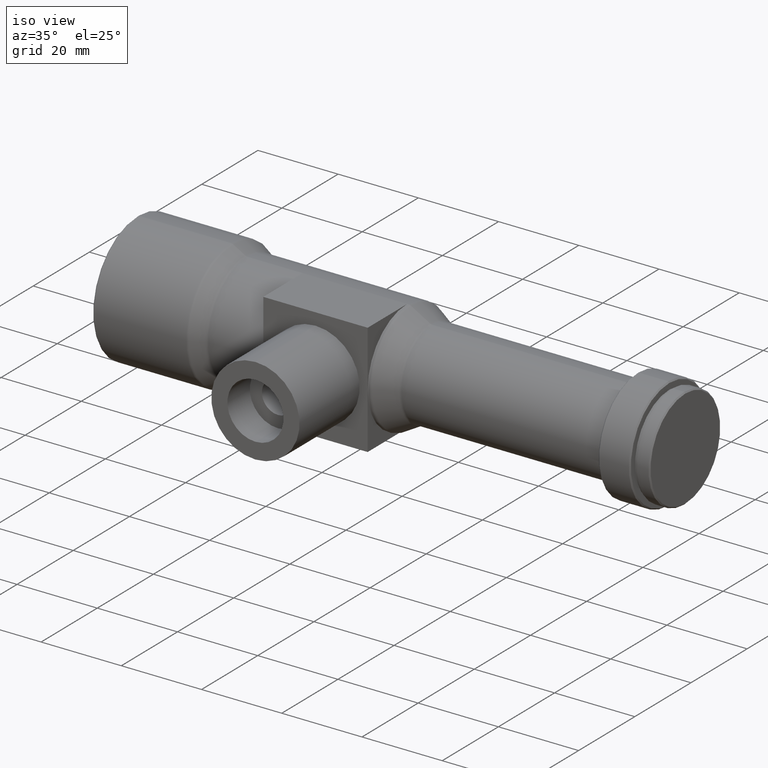
[diagram: clean part render]
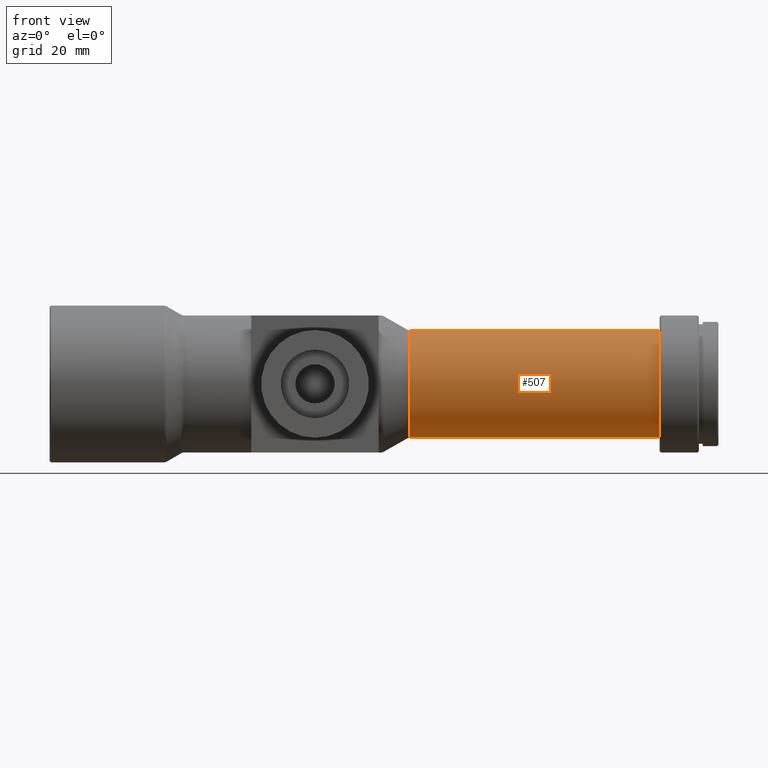
[diagram: tour spotlight — one face highlighted and labeled with its STEP entity id]
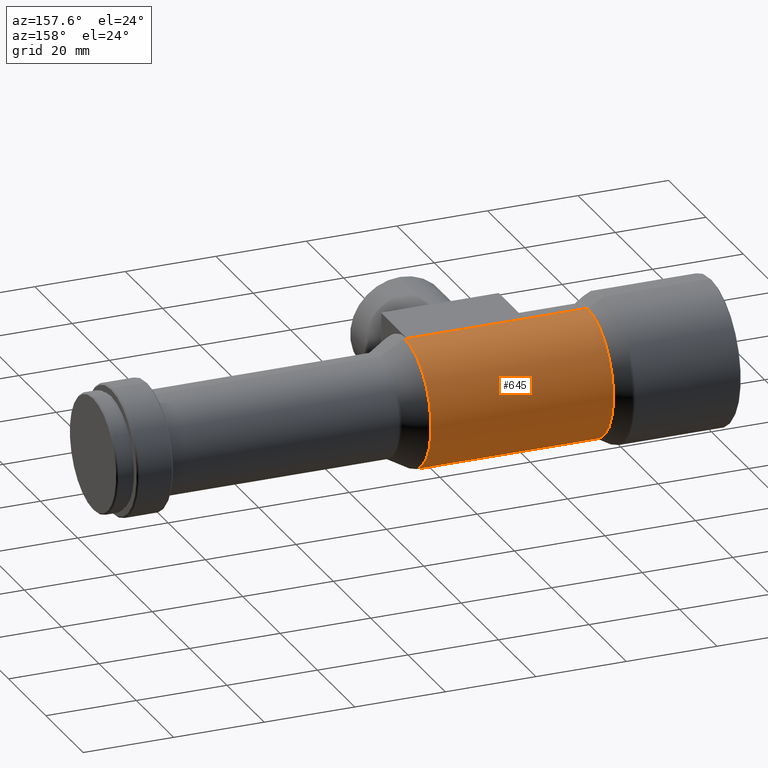
[diagram: tour spotlight — one face highlighted and labeled with its STEP entity id]
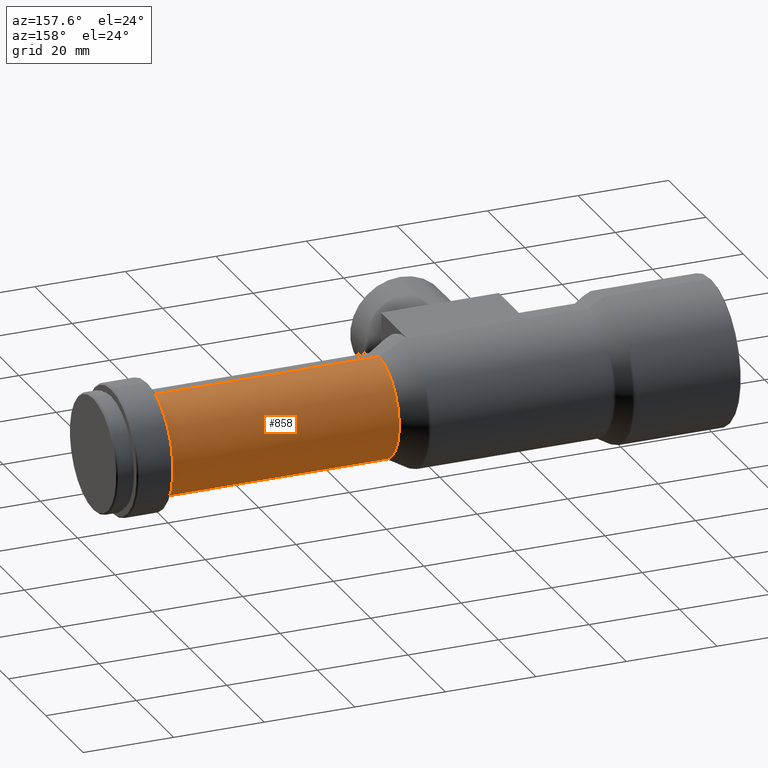
[diagram: tour spotlight — one face highlighted and labeled with its STEP entity id]
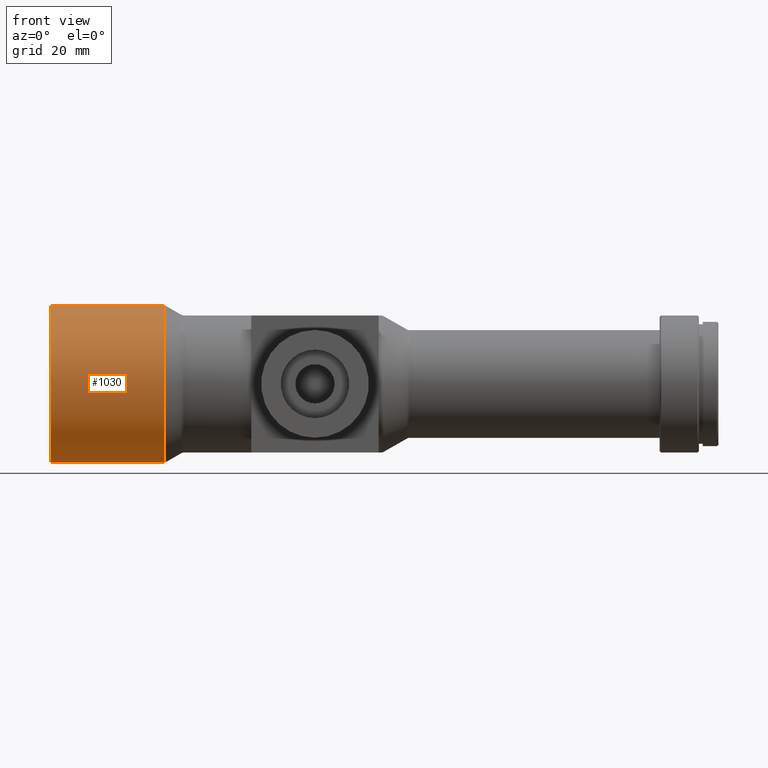
[diagram: tour spotlight — one face highlighted and labeled with its STEP entity id]
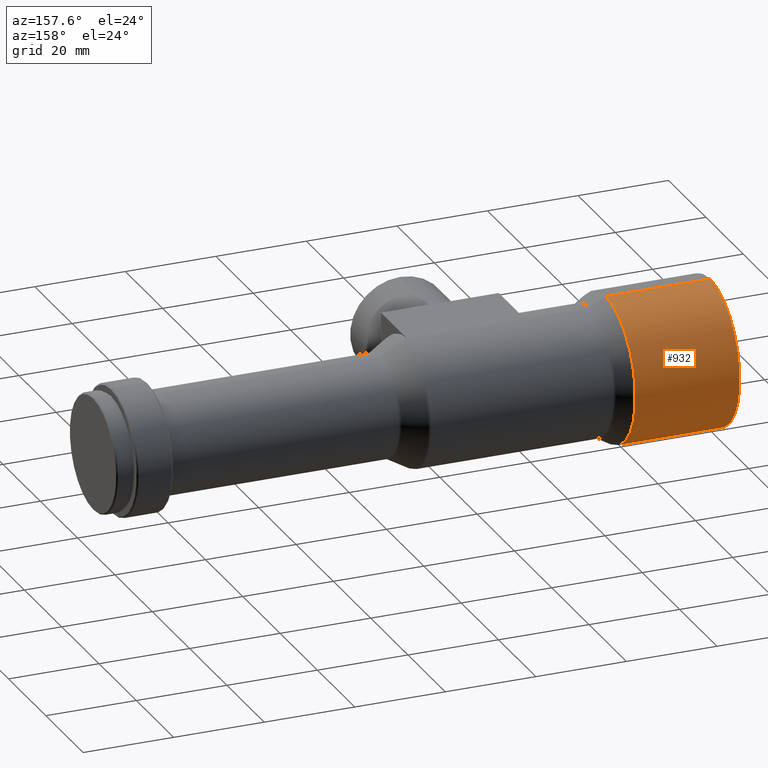
[diagram: tour spotlight — one face highlighted and labeled with its STEP entity id]
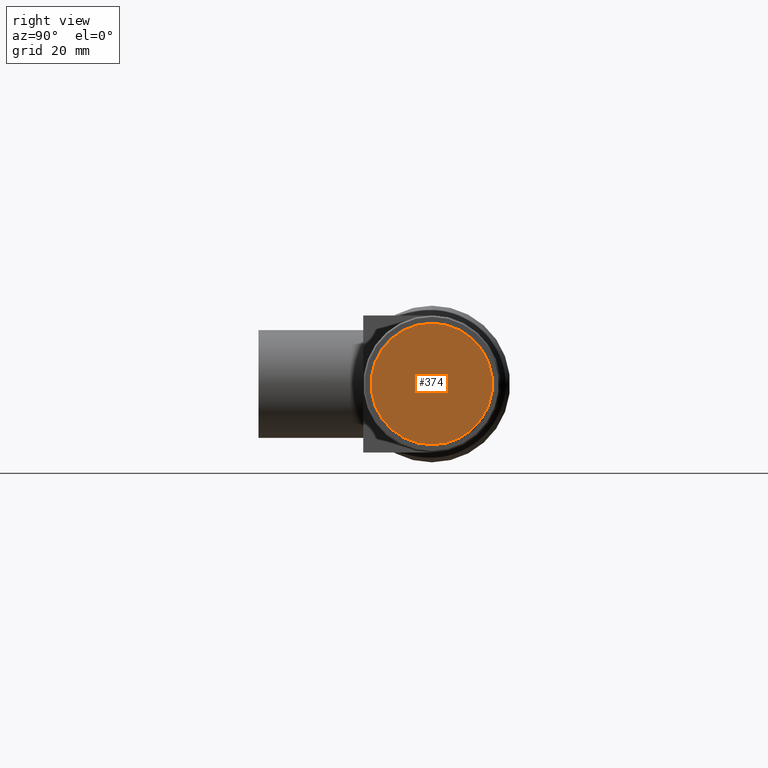
[diagram: tour spotlight — one face highlighted and labeled with its STEP entity id]
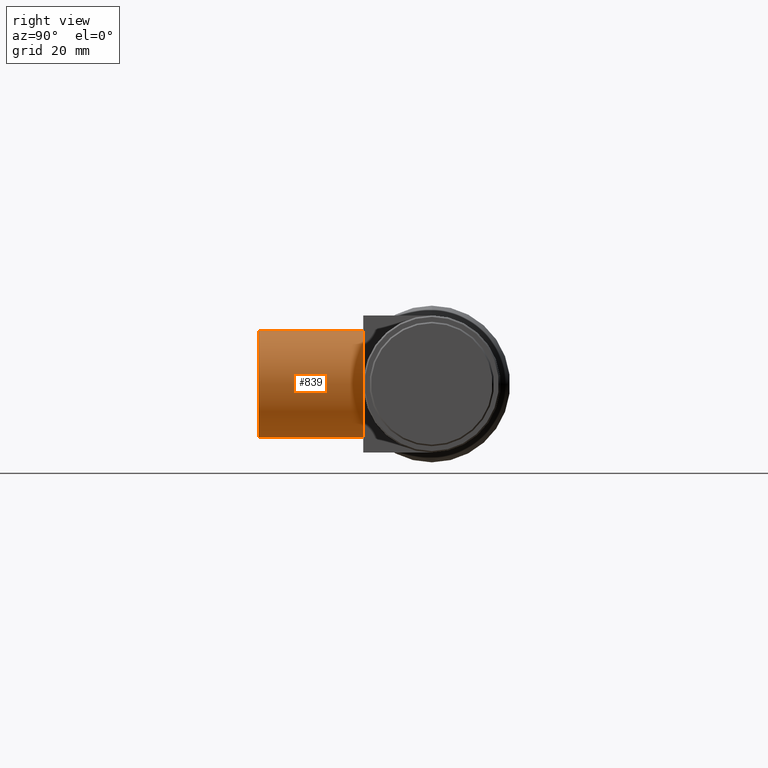
[diagram: tour spotlight — one face highlighted and labeled with its STEP entity id]
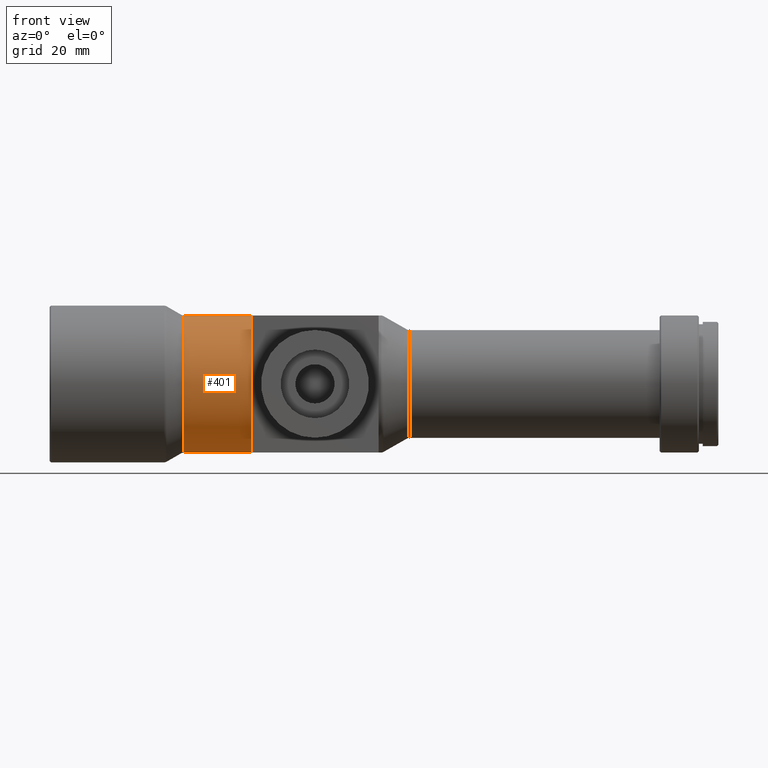
[diagram: tour spotlight — one face highlighted and labeled with its STEP entity id]
A machine part: a face-by-face anatomy tour. The part has 54 B-rep faces; the first image is the clean iso view, then the 8 largest visible faces are spotlighted one at a time (largest first), each with its STEP entity span.

Face 1 — front view, entity #507. In plain terms, the highlighted cylindrical surface (partial cylindrical patch) has radius 11 mm, axis along (-1, -0, -0).
Definition (entity closure, byte-faithful):
#8 = LINE ( 'NONE', #28, #669 ) ;
#28 = CARTESIAN_POINT ( 'NONE',  ( 0.0000000000000000000, 1.347111479062088400E-015, -11.00000000000000000 ) ) ;
#69 = DIRECTION ( 'NONE',  ( -1.000000000000000000, -0.0000000000000000000, -0.0000000000000000000 ) ) ;
#78 = VERTEX_POINT ( 'NONE', #1231 ) ;
#151 = EDGE_CURVE ( 'NONE', #1321, #1060, #354, .T. ) ;
#276 = LINE ( 'NONE', #946, #641 ) ;
#313 = VERTEX_POINT ( 'NONE', #1026 ) ;
#354 = CIRCLE ( 'NONE', #1134, 11.00000000000000000 ) ;
#384 = EDGE_CURVE ( 'NONE', #1060, #78, #276, .T. ) ;
#403 = CARTESIAN_POINT ( 'NONE',  ( 0.0000000000000000000, 0.0000000000000000000, 0.0000000000000000000 ) ) ;
#505 = DIRECTION ( 'NONE',  ( -1.000000000000000000, -0.0000000000000000000, -0.0000000000000000000 ) ) ;
#507 = ADVANCED_FACE ( 'NONE', ( #534 ), #1379, .T. ) ;
#526 = DIRECTION ( 'NONE',  ( 0.0000000000000000000, 0.0000000000000000000, 1.000000000000000000 ) ) ;
#534 = FACE_OUTER_BOUND ( 'NONE', #695, .T. ) ;
#561 = ORIENTED_EDGE ( 'NONE', *, *, #628, .F. ) ;
#628 = EDGE_CURVE ( 'NONE', #313, #78, #901, .T. ) ;
#641 = VECTOR ( 'NONE', #833, 1000.000000000000000 ) ;
#669 = VECTOR ( 'NONE', #505, 1000.000000000000000 ) ;
#695 = EDGE_LOOP ( 'NONE', ( #1415, #728, #750, #561 ) ) ;
#728 = ORIENTED_EDGE ( 'NONE', *, *, #151, .T. ) ;
#750 = ORIENTED_EDGE ( 'NONE', *, *, #384, .T. ) ;
#781 = CARTESIAN_POINT ( 'NONE',  ( 124.5999999999999900, 0.0000000000000000000, 0.0000000000000000000 ) ) ;
#814 = DIRECTION ( 'NONE',  ( 0.0000000000000000000, 0.0000000000000000000, 1.000000000000000000 ) ) ;
#833 = DIRECTION ( 'NONE',  ( -1.000000000000000000, -0.0000000000000000000, -0.0000000000000000000 ) ) ;
#901 = CIRCLE ( 'NONE', #1444, 10.99999999999999800 ) ;
#946 = CARTESIAN_POINT ( 'NONE',  ( 0.0000000000000000000, 0.0000000000000000000, 11.00000000000000000 ) ) ;
#987 = AXIS2_PLACEMENT_3D ( 'NONE', #403, #69, #526 ) ;
#993 = DIRECTION ( 'NONE',  ( 0.0000000000000000000, 0.0000000000000000000, 1.000000000000000000 ) ) ;
#1026 = CARTESIAN_POINT ( 'NONE',  ( 73.50000000000000000, 1.355127934622841600E-015, -10.99999999999999800 ) ) ;
#1060 = VERTEX_POINT ( 'NONE', #1080 ) ;
#1080 = CARTESIAN_POINT ( 'NONE',  ( 124.5999999999999900, 0.0000000000000000000, 11.00000000000000000 ) ) ;
#1134 = AXIS2_PLACEMENT_3D ( 'NONE', #781, #1469, #993 ) ;
#1226 = EDGE_CURVE ( 'NONE', #1321, #313, #8, .T. ) ;
#1231 = CARTESIAN_POINT ( 'NONE',  ( 73.50000000000000000, 0.0000000000000000000, 10.99999999999999800 ) ) ;
#1260 = DIRECTION ( 'NONE',  ( -1.000000000000000000, -0.0000000000000000000, -0.0000000000000000000 ) ) ;
#1302 = CARTESIAN_POINT ( 'NONE',  ( 124.5999999999999900, 1.347111479062088400E-015, -11.00000000000000000 ) ) ;
#1321 = VERTEX_POINT ( 'NONE', #1302 ) ;
#1377 = CARTESIAN_POINT ( 'NONE',  ( 73.50000000000000000, 0.0000000000000000000, 0.0000000000000000000 ) ) ;
#1379 = CYLINDRICAL_SURFACE ( 'NONE', #987, 11.00000000000000000 ) ;
#1415 = ORIENTED_EDGE ( 'NONE', *, *, #1226, .F. ) ;
#1444 = AXIS2_PLACEMENT_3D ( 'NONE', #1377, #1260, #814 ) ;
#1469 = DIRECTION ( 'NONE',  ( -1.000000000000000000, -0.0000000000000000000, -0.0000000000000000000 ) ) ;

Face 2 — auxiliary view, entity #645. In plain terms, the highlighted cylindrical surface (partial cylindrical patch) has radius 14 mm, axis along (-1, -0, -0).
Definition (entity closure, byte-faithful):
#12 = DIRECTION ( 'NONE',  ( -1.000000000000000000, -0.0000000000000000000, -0.0000000000000000000 ) ) ;
#23 = VECTOR ( 'NONE', #764, 1000.000000000000000 ) ;
#40 = VERTEX_POINT ( 'NONE', #77 ) ;
#41 = DIRECTION ( 'NONE',  ( -1.000000000000000000, -0.0000000000000000000, -0.0000000000000000000 ) ) ;
#51 = EDGE_CURVE ( 'NONE', #342, #40, #392, .T. ) ;
#70 = CARTESIAN_POINT ( 'NONE',  ( 41.20000000000001000, 0.0000000000000000000, 14.00000000000000000 ) ) ;
#77 = CARTESIAN_POINT ( 'NONE',  ( 41.20000000000001000, 0.0000000000000000000, 14.00000000000000000 ) ) ;
#85 = ORIENTED_EDGE ( 'NONE', *, *, #524, .T. ) ;
#122 = CARTESIAN_POINT ( 'NONE',  ( 0.0000000000000000000, 0.0000000000000000000, 14.00000000000000200 ) ) ;
#123 = DIRECTION ( 'NONE',  ( -1.000000000000000000, -0.0000000000000000000, -0.0000000000000000000 ) ) ;
#130 = CARTESIAN_POINT ( 'NONE',  ( 0.0000000000000000000, 1.714505518806294800E-015, -14.00000000000000200 ) ) ;
#182 = CARTESIAN_POINT ( 'NONE',  ( 0.0000000000000000000, 0.0000000000000000000, 14.00000000000000200 ) ) ;
#183 = DIRECTION ( 'NONE',  ( 0.0000000000000000000, 0.0000000000000000000, 1.000000000000000000 ) ) ;
#187 = ORIENTED_EDGE ( 'NONE', *, *, #1352, .T. ) ;
#268 = EDGE_LOOP ( 'NONE', ( #85, #637, #187, #679, #1097, #790, #1212, #1378 ) ) ;
#280 = CARTESIAN_POINT ( 'NONE',  ( 67.70000000000000300, 0.0000000000000000000, 0.0000000000000000000 ) ) ;
#290 = EDGE_CURVE ( 'NONE', #479, #1440, #1098, .T. ) ;
#298 = DIRECTION ( 'NONE',  ( -1.000000000000000000, -0.0000000000000000000, -0.0000000000000000000 ) ) ;
#300 = CARTESIAN_POINT ( 'NONE',  ( 27.39999999999999900, 0.0000000000000000000, 14.00000000000000200 ) ) ;
#342 = VERTEX_POINT ( 'NONE', #1012 ) ;
#385 = DIRECTION ( 'NONE',  ( 0.0000000000000000000, 0.0000000000000000000, 1.000000000000000000 ) ) ;
#392 = LINE ( 'NONE', #70, #1265 ) ;
#408 = DIRECTION ( 'NONE',  ( -1.000000000000000000, -0.0000000000000000000, -0.0000000000000000000 ) ) ;
#434 = CIRCLE ( 'NONE', #1034, 14.00000000000000200 ) ;
#465 = VERTEX_POINT ( 'NONE', #1303 ) ;
#479 = VERTEX_POINT ( 'NONE', #626 ) ;
#508 = CARTESIAN_POINT ( 'NONE',  ( 27.39999999999999900, 0.0000000000000000000, 0.0000000000000000000 ) ) ;
#519 = CIRCLE ( 'NONE', #1441, 14.00000000000000000 ) ;
#524 = EDGE_CURVE ( 'NONE', #465, #479, #519, .T. ) ;
#554 = CARTESIAN_POINT ( 'NONE',  ( 41.20000000000001000, 0.0000000000000000000, -14.00000000000000000 ) ) ;
#559 = DIRECTION ( 'NONE',  ( 0.0000000000000000000, 0.0000000000000000000, 1.000000000000000000 ) ) ;
#565 = LINE ( 'NONE', #122, #1433 ) ;
#587 = VECTOR ( 'NONE', #123, 1000.000000000000000 ) ;
#610 = CARTESIAN_POINT ( 'NONE',  ( 27.39999999999999900, 1.714505518806294800E-015, -14.00000000000000200 ) ) ;
#624 = LINE ( 'NONE', #554, #23 ) ;
#626 = CARTESIAN_POINT ( 'NONE',  ( 67.70000000000000300, 1.714505518806294600E-015, -14.00000000000000000 ) ) ;
#634 = EDGE_CURVE ( 'NONE', #465, #342, #565, .T. ) ;
#637 = ORIENTED_EDGE ( 'NONE', *, *, #290, .T. ) ;
#645 = ADVANCED_FACE ( 'NONE', ( #1466 ), #1067, .T. ) ;
#667 = LINE ( 'NONE', #182, #902 ) ;
#670 = CARTESIAN_POINT ( 'NONE',  ( 41.20000000000001000, 0.0000000000000000000, -14.00000000000000200 ) ) ;
#679 = ORIENTED_EDGE ( 'NONE', *, *, #1261, .T. ) ;
#764 = DIRECTION ( 'NONE',  ( -1.000000000000000000, -0.0000000000000000000, -0.0000000000000000000 ) ) ;
#790 = ORIENTED_EDGE ( 'NONE', *, *, #1407, .F. ) ;
#896 = AXIS2_PLACEMENT_3D ( 'NONE', #916, #12, #559 ) ;
#902 = VECTOR ( 'NONE', #1208, 1000.000000000000000 ) ;
#916 = CARTESIAN_POINT ( 'NONE',  ( 0.0000000000000000000, 0.0000000000000000000, 0.0000000000000000000 ) ) ;
#984 = VERTEX_POINT ( 'NONE', #610 ) ;
#1012 = CARTESIAN_POINT ( 'NONE',  ( 67.20000000000000300, 0.0000000000000000000, 14.00000000000000000 ) ) ;
#1034 = AXIS2_PLACEMENT_3D ( 'NONE', #508, #41, #385 ) ;
#1044 = EDGE_CURVE ( 'NONE', #1354, #984, #434, .T. ) ;
#1067 = CYLINDRICAL_SURFACE ( 'NONE', #896, 14.00000000000000200 ) ;
#1088 = CARTESIAN_POINT ( 'NONE',  ( 67.20000000000000300, 0.0000000000000000000, -14.00000000000000000 ) ) ;
#1089 = DIRECTION ( 'NONE',  ( -1.000000000000000000, -0.0000000000000000000, -0.0000000000000000000 ) ) ;
#1097 = ORIENTED_EDGE ( 'NONE', *, *, #1044, .F. ) ;
#1098 = LINE ( 'NONE', #130, #587 ) ;
#1109 = VECTOR ( 'NONE', #408, 1000.000000000000000 ) ;
#1147 = DIRECTION ( 'NONE',  ( -1.000000000000000000, -0.0000000000000000000, -0.0000000000000000000 ) ) ;
#1208 = DIRECTION ( 'NONE',  ( -1.000000000000000000, -0.0000000000000000000, -0.0000000000000000000 ) ) ;
#1212 = ORIENTED_EDGE ( 'NONE', *, *, #51, .F. ) ;
#1261 = EDGE_CURVE ( 'NONE', #1337, #984, #1418, .T. ) ;
#1265 = VECTOR ( 'NONE', #298, 1000.000000000000000 ) ;
#1303 = CARTESIAN_POINT ( 'NONE',  ( 67.70000000000000300, 0.0000000000000000000, 14.00000000000000000 ) ) ;
#1337 = VERTEX_POINT ( 'NONE', #670 ) ;
#1352 = EDGE_CURVE ( 'NONE', #1440, #1337, #624, .T. ) ;
#1354 = VERTEX_POINT ( 'NONE', #300 ) ;
#1378 = ORIENTED_EDGE ( 'NONE', *, *, #634, .F. ) ;
#1407 = EDGE_CURVE ( 'NONE', #40, #1354, #667, .T. ) ;
#1413 = CARTESIAN_POINT ( 'NONE',  ( 0.0000000000000000000, 1.714505518806294800E-015, -14.00000000000000200 ) ) ;
#1418 = LINE ( 'NONE', #1413, #1109 ) ;
#1433 = VECTOR ( 'NONE', #1147, 1000.000000000000000 ) ;
#1440 = VERTEX_POINT ( 'NONE', #1088 ) ;
#1441 = AXIS2_PLACEMENT_3D ( 'NONE', #280, #1089, #183 ) ;
#1466 = FACE_OUTER_BOUND ( 'NONE', #268, .T. ) ;

Face 3 — auxiliary view, entity #858. In plain terms, the highlighted cylindrical surface (partial cylindrical patch) has radius 11 mm, axis along (-1, -0, -0).
Definition (entity closure, byte-faithful):
#8 = LINE ( 'NONE', #28, #669 ) ;
#28 = CARTESIAN_POINT ( 'NONE',  ( 0.0000000000000000000, 1.347111479062088400E-015, -11.00000000000000000 ) ) ;
#30 = CARTESIAN_POINT ( 'NONE',  ( 124.5999999999999900, 0.0000000000000000000, 0.0000000000000000000 ) ) ;
#78 = VERTEX_POINT ( 'NONE', #1231 ) ;
#164 = DIRECTION ( 'NONE',  ( -1.000000000000000000, -0.0000000000000000000, -0.0000000000000000000 ) ) ;
#189 = AXIS2_PLACEMENT_3D ( 'NONE', #951, #164, #635 ) ;
#203 = ORIENTED_EDGE ( 'NONE', *, *, #384, .F. ) ;
#226 = DIRECTION ( 'NONE',  ( 0.0000000000000000000, 0.0000000000000000000, 1.000000000000000000 ) ) ;
#276 = LINE ( 'NONE', #946, #641 ) ;
#313 = VERTEX_POINT ( 'NONE', #1026 ) ;
#356 = ORIENTED_EDGE ( 'NONE', *, *, #815, .T. ) ;
#384 = EDGE_CURVE ( 'NONE', #1060, #78, #276, .T. ) ;
#405 = ORIENTED_EDGE ( 'NONE', *, *, #1226, .T. ) ;
#451 = AXIS2_PLACEMENT_3D ( 'NONE', #30, #837, #938 ) ;
#489 = ORIENTED_EDGE ( 'NONE', *, *, #1284, .F. ) ;
#505 = DIRECTION ( 'NONE',  ( -1.000000000000000000, -0.0000000000000000000, -0.0000000000000000000 ) ) ;
#581 = DIRECTION ( 'NONE',  ( -1.000000000000000000, -0.0000000000000000000, -0.0000000000000000000 ) ) ;
#635 = DIRECTION ( 'NONE',  ( 0.0000000000000000000, 0.0000000000000000000, 1.000000000000000000 ) ) ;
#641 = VECTOR ( 'NONE', #833, 1000.000000000000000 ) ;
#669 = VECTOR ( 'NONE', #505, 1000.000000000000000 ) ;
#726 = AXIS2_PLACEMENT_3D ( 'NONE', #1259, #581, #226 ) ;
#815 = EDGE_CURVE ( 'NONE', #1060, #1321, #1184, .T. ) ;
#833 = DIRECTION ( 'NONE',  ( -1.000000000000000000, -0.0000000000000000000, -0.0000000000000000000 ) ) ;
#837 = DIRECTION ( 'NONE',  ( -1.000000000000000000, -0.0000000000000000000, -0.0000000000000000000 ) ) ;
#858 = ADVANCED_FACE ( 'NONE', ( #1163 ), #1382, .T. ) ;
#938 = DIRECTION ( 'NONE',  ( 0.0000000000000000000, 0.0000000000000000000, 1.000000000000000000 ) ) ;
#946 = CARTESIAN_POINT ( 'NONE',  ( 0.0000000000000000000, 0.0000000000000000000, 11.00000000000000000 ) ) ;
#951 = CARTESIAN_POINT ( 'NONE',  ( 73.50000000000000000, 0.0000000000000000000, 0.0000000000000000000 ) ) ;
#1026 = CARTESIAN_POINT ( 'NONE',  ( 73.50000000000000000, 1.355127934622841600E-015, -10.99999999999999800 ) ) ;
#1060 = VERTEX_POINT ( 'NONE', #1080 ) ;
#1080 = CARTESIAN_POINT ( 'NONE',  ( 124.5999999999999900, 0.0000000000000000000, 11.00000000000000000 ) ) ;
#1163 = FACE_OUTER_BOUND ( 'NONE', #1434, .T. ) ;
#1184 = CIRCLE ( 'NONE', #451, 11.00000000000000000 ) ;
#1226 = EDGE_CURVE ( 'NONE', #1321, #313, #8, .T. ) ;
#1231 = CARTESIAN_POINT ( 'NONE',  ( 73.50000000000000000, 0.0000000000000000000, 10.99999999999999800 ) ) ;
#1259 = CARTESIAN_POINT ( 'NONE',  ( 0.0000000000000000000, 0.0000000000000000000, 0.0000000000000000000 ) ) ;
#1284 = EDGE_CURVE ( 'NONE', #78, #313, #1344, .T. ) ;
#1302 = CARTESIAN_POINT ( 'NONE',  ( 124.5999999999999900, 1.347111479062088400E-015, -11.00000000000000000 ) ) ;
#1321 = VERTEX_POINT ( 'NONE', #1302 ) ;
#1344 = CIRCLE ( 'NONE', #189, 10.99999999999999800 ) ;
#1382 = CYLINDRICAL_SURFACE ( 'NONE', #726, 11.00000000000000000 ) ;
#1434 = EDGE_LOOP ( 'NONE', ( #356, #405, #489, #203 ) ) ;

Face 4 — front view, entity #1030. In plain terms, the highlighted cylindrical surface (partial cylindrical patch) has radius 16 mm, axis along (-1, -0, -0).
Definition (entity closure, byte-faithful):
#65 = AXIS2_PLACEMENT_3D ( 'NONE', #1384, #1257, #454 ) ;
#179 = EDGE_CURVE ( 'NONE', #431, #592, #1372, .T. ) ;
#230 = CIRCLE ( 'NONE', #65, 16.00000000000000000 ) ;
#247 = ORIENTED_EDGE ( 'NONE', *, *, #179, .F. ) ;
#264 = EDGE_CURVE ( 'NONE', #1459, #908, #230, .T. ) ;
#271 = DIRECTION ( 'NONE',  ( -1.000000000000000000, -0.0000000000000000000, -0.0000000000000000000 ) ) ;
#288 = CARTESIAN_POINT ( 'NONE',  ( 0.0000000000000000000, 0.0000000000000000000, 0.0000000000000000000 ) ) ;
#325 = ORIENTED_EDGE ( 'NONE', *, *, #1338, .T. ) ;
#368 = CARTESIAN_POINT ( 'NONE',  ( 0.2999999999999999900, 0.0000000000000000000, -16.00000000000000000 ) ) ;
#387 = CARTESIAN_POINT ( 'NONE',  ( 0.2999999999999999900, 1.959434878635765100E-015, 16.00000000000000000 ) ) ;
#422 = LINE ( 'NONE', #1326, #1292 ) ;
#429 = DIRECTION ( 'NONE',  ( -1.000000000000000000, -0.0000000000000000000, -0.0000000000000000000 ) ) ;
#431 = VERTEX_POINT ( 'NONE', #368 ) ;
#440 = CARTESIAN_POINT ( 'NONE',  ( 0.2999999999999999900, 0.0000000000000000000, 0.0000000000000000000 ) ) ;
#444 = EDGE_LOOP ( 'NONE', ( #925, #1121, #325, #247 ) ) ;
#454 = DIRECTION ( 'NONE',  ( 0.0000000000000000000, 0.0000000000000000000, 1.000000000000000000 ) ) ;
#500 = AXIS2_PLACEMENT_3D ( 'NONE', #288, #1424, #857 ) ;
#591 = DIRECTION ( 'NONE',  ( 0.0000000000000000000, 0.0000000000000000000, 1.000000000000000000 ) ) ;
#592 = VERTEX_POINT ( 'NONE', #387 ) ;
#785 = FACE_OUTER_BOUND ( 'NONE', #444, .T. ) ;
#857 = DIRECTION ( 'NONE',  ( 0.0000000000000000000, 0.0000000000000000000, 1.000000000000000000 ) ) ;
#908 = VERTEX_POINT ( 'NONE', #1005 ) ;
#914 = VECTOR ( 'NONE', #271, 1000.000000000000000 ) ;
#925 = ORIENTED_EDGE ( 'NONE', *, *, #1237, .F. ) ;
#1005 = CARTESIAN_POINT ( 'NONE',  ( 23.39999999999999900, 0.0000000000000000000, 16.00000000000000000 ) ) ;
#1030 = ADVANCED_FACE ( 'NONE', ( #785 ), #1201, .T. ) ;
#1111 = CARTESIAN_POINT ( 'NONE',  ( 23.39999999999999900, 1.959434878635765100E-015, -16.00000000000000000 ) ) ;
#1121 = ORIENTED_EDGE ( 'NONE', *, *, #264, .T. ) ;
#1201 = CYLINDRICAL_SURFACE ( 'NONE', #500, 16.00000000000000000 ) ;
#1237 = EDGE_CURVE ( 'NONE', #1459, #431, #1331, .T. ) ;
#1257 = DIRECTION ( 'NONE',  ( -1.000000000000000000, -0.0000000000000000000, -0.0000000000000000000 ) ) ;
#1292 = VECTOR ( 'NONE', #429, 1000.000000000000000 ) ;
#1326 = CARTESIAN_POINT ( 'NONE',  ( 0.0000000000000000000, 0.0000000000000000000, 16.00000000000000000 ) ) ;
#1331 = LINE ( 'NONE', #1425, #914 ) ;
#1338 = EDGE_CURVE ( 'NONE', #908, #592, #422, .T. ) ;
#1356 = DIRECTION ( 'NONE',  ( -1.000000000000000000, -0.0000000000000000000, -0.0000000000000000000 ) ) ;
#1372 = CIRCLE ( 'NONE', #1420, 16.00000000000000000 ) ;
#1384 = CARTESIAN_POINT ( 'NONE',  ( 23.39999999999999900, 0.0000000000000000000, 0.0000000000000000000 ) ) ;
#1420 = AXIS2_PLACEMENT_3D ( 'NONE', #440, #1356, #591 ) ;
#1424 = DIRECTION ( 'NONE',  ( -1.000000000000000000, -0.0000000000000000000, -0.0000000000000000000 ) ) ;
#1425 = CARTESIAN_POINT ( 'NONE',  ( 0.0000000000000000000, 1.959434878635765100E-015, -16.00000000000000000 ) ) ;
#1459 = VERTEX_POINT ( 'NONE', #1111 ) ;

Face 5 — auxiliary view, entity #932. In plain terms, the highlighted cylindrical surface (partial cylindrical patch) has radius 16 mm, axis along (-1, -0, -0).
Definition (entity closure, byte-faithful):
#74 = AXIS2_PLACEMENT_3D ( 'NONE', #629, #267, #1297 ) ;
#155 = CIRCLE ( 'NONE', #687, 16.00000000000000000 ) ;
#157 = ORIENTED_EDGE ( 'NONE', *, *, #1237, .T. ) ;
#214 = EDGE_CURVE ( 'NONE', #592, #431, #155, .T. ) ;
#216 = ORIENTED_EDGE ( 'NONE', *, *, #214, .F. ) ;
#267 = DIRECTION ( 'NONE',  ( -1.000000000000000000, -0.0000000000000000000, -0.0000000000000000000 ) ) ;
#271 = DIRECTION ( 'NONE',  ( -1.000000000000000000, -0.0000000000000000000, -0.0000000000000000000 ) ) ;
#361 = DIRECTION ( 'NONE',  ( 0.0000000000000000000, 0.0000000000000000000, 1.000000000000000000 ) ) ;
#368 = CARTESIAN_POINT ( 'NONE',  ( 0.2999999999999999900, 0.0000000000000000000, -16.00000000000000000 ) ) ;
#387 = CARTESIAN_POINT ( 'NONE',  ( 0.2999999999999999900, 1.959434878635765100E-015, 16.00000000000000000 ) ) ;
#422 = LINE ( 'NONE', #1326, #1292 ) ;
#429 = DIRECTION ( 'NONE',  ( -1.000000000000000000, -0.0000000000000000000, -0.0000000000000000000 ) ) ;
#431 = VERTEX_POINT ( 'NONE', #368 ) ;
#463 = DIRECTION ( 'NONE',  ( -1.000000000000000000, -0.0000000000000000000, -0.0000000000000000000 ) ) ;
#569 = FACE_OUTER_BOUND ( 'NONE', #665, .T. ) ;
#592 = VERTEX_POINT ( 'NONE', #387 ) ;
#613 = AXIS2_PLACEMENT_3D ( 'NONE', #1385, #1035, #361 ) ;
#629 = CARTESIAN_POINT ( 'NONE',  ( 23.39999999999999900, 0.0000000000000000000, 0.0000000000000000000 ) ) ;
#665 = EDGE_LOOP ( 'NONE', ( #1332, #157, #216, #1329 ) ) ;
#687 = AXIS2_PLACEMENT_3D ( 'NONE', #816, #463, #1373 ) ;
#816 = CARTESIAN_POINT ( 'NONE',  ( 0.2999999999999999900, 0.0000000000000000000, 0.0000000000000000000 ) ) ;
#855 = CYLINDRICAL_SURFACE ( 'NONE', #613, 16.00000000000000000 ) ;
#908 = VERTEX_POINT ( 'NONE', #1005 ) ;
#914 = VECTOR ( 'NONE', #271, 1000.000000000000000 ) ;
#930 = CIRCLE ( 'NONE', #74, 16.00000000000000000 ) ;
#932 = ADVANCED_FACE ( 'NONE', ( #569 ), #855, .T. ) ;
#1005 = CARTESIAN_POINT ( 'NONE',  ( 23.39999999999999900, 0.0000000000000000000, 16.00000000000000000 ) ) ;
#1017 = EDGE_CURVE ( 'NONE', #908, #1459, #930, .T. ) ;
#1035 = DIRECTION ( 'NONE',  ( -1.000000000000000000, -0.0000000000000000000, -0.0000000000000000000 ) ) ;
#1111 = CARTESIAN_POINT ( 'NONE',  ( 23.39999999999999900, 1.959434878635765100E-015, -16.00000000000000000 ) ) ;
#1237 = EDGE_CURVE ( 'NONE', #1459, #431, #1331, .T. ) ;
#1292 = VECTOR ( 'NONE', #429, 1000.000000000000000 ) ;
#1297 = DIRECTION ( 'NONE',  ( 0.0000000000000000000, 0.0000000000000000000, 1.000000000000000000 ) ) ;
#1326 = CARTESIAN_POINT ( 'NONE',  ( 0.0000000000000000000, 0.0000000000000000000, 16.00000000000000000 ) ) ;
#1329 = ORIENTED_EDGE ( 'NONE', *, *, #1338, .F. ) ;
#1331 = LINE ( 'NONE', #1425, #914 ) ;
#1332 = ORIENTED_EDGE ( 'NONE', *, *, #1017, .T. ) ;
#1338 = EDGE_CURVE ( 'NONE', #908, #592, #422, .T. ) ;
#1373 = DIRECTION ( 'NONE',  ( 0.0000000000000000000, 0.0000000000000000000, 1.000000000000000000 ) ) ;
#1385 = CARTESIAN_POINT ( 'NONE',  ( 0.0000000000000000000, 0.0000000000000000000, 0.0000000000000000000 ) ) ;
#1425 = CARTESIAN_POINT ( 'NONE',  ( 0.0000000000000000000, 1.959434878635765100E-015, -16.00000000000000000 ) ) ;
#1459 = VERTEX_POINT ( 'NONE', #1111 ) ;

Face 6 — right view, entity #374. In plain terms, the highlighted planar face has unit normal (-1, 0, -0).
Definition (entity closure, byte-faithful):
#15 = CARTESIAN_POINT ( 'NONE',  ( 136.5999999999999900, 0.0000000000000000000, 0.0000000000000000000 ) ) ;
#29 = CARTESIAN_POINT ( 'NONE',  ( 136.5999999999999900, 12.40000000000001300, 0.0000000000000000000 ) ) ;
#79 = VERTEX_POINT ( 'NONE', #1227 ) ;
#374 = ADVANCED_FACE ( 'NONE', ( #681 ), #939, .F. ) ;
#477 = DIRECTION ( 'NONE',  ( 0.0000000000000000000, 0.0000000000000000000, 1.000000000000000000 ) ) ;
#482 = DIRECTION ( 'NONE',  ( -0.0000000000000000000, 0.0000000000000000000, 1.000000000000000000 ) ) ;
#562 = ORIENTED_EDGE ( 'NONE', *, *, #713, .F. ) ;
#595 = DIRECTION ( 'NONE',  ( -1.000000000000000000, -0.0000000000000000000, -0.0000000000000000000 ) ) ;
#603 = AXIS2_PLACEMENT_3D ( 'NONE', #29, #1393, #482 ) ;
#681 = FACE_OUTER_BOUND ( 'NONE', #867, .T. ) ;
#712 = VERTEX_POINT ( 'NONE', #1023 ) ;
#713 = EDGE_CURVE ( 'NONE', #79, #712, #798, .T. ) ;
#723 = DIRECTION ( 'NONE',  ( 0.0000000000000000000, 0.0000000000000000000, 1.000000000000000000 ) ) ;
#798 = CIRCLE ( 'NONE', #1056, 12.40000000000001300 ) ;
#824 = DIRECTION ( 'NONE',  ( -1.000000000000000000, -0.0000000000000000000, -0.0000000000000000000 ) ) ;
#867 = EDGE_LOOP ( 'NONE', ( #1230, #562 ) ) ;
#895 = AXIS2_PLACEMENT_3D ( 'NONE', #1273, #595, #723 ) ;
#939 = PLANE ( 'NONE',  #603 ) ;
#950 = CIRCLE ( 'NONE', #895, 12.40000000000001300 ) ;
#1023 = CARTESIAN_POINT ( 'NONE',  ( 136.5999999999999900, 0.0000000000000000000, 12.40000000000001300 ) ) ;
#1056 = AXIS2_PLACEMENT_3D ( 'NONE', #15, #824, #477 ) ;
#1198 = EDGE_CURVE ( 'NONE', #712, #79, #950, .T. ) ;
#1227 = CARTESIAN_POINT ( 'NONE',  ( 136.5999999999999900, 1.536931732929930000E-015, -12.40000000000001300 ) ) ;
#1230 = ORIENTED_EDGE ( 'NONE', *, *, #1198, .F. ) ;
#1273 = CARTESIAN_POINT ( 'NONE',  ( 136.5999999999999900, 0.0000000000000000000, 0.0000000000000000000 ) ) ;
#1393 = DIRECTION ( 'NONE',  ( -1.000000000000000000, 0.0000000000000000000, -0.0000000000000000000 ) ) ;

Face 7 — right view, entity #839. In plain terms, the highlighted cylindrical surface (partial cylindrical patch) has radius 11 mm, axis along (-0, 1, -0).
Definition (entity closure, byte-faithful):
#26 = CIRCLE ( 'NONE', #1087, 10.99999999999999600 ) ;
#129 = LINE ( 'NONE', #240, #536 ) ;
#240 = CARTESIAN_POINT ( 'NONE',  ( 54.20000000000001000, 0.0000000000000000000, -10.99999999999999600 ) ) ;
#250 = CARTESIAN_POINT ( 'NONE',  ( 54.20000000000001000, -14.00000000000000200, -10.99999999999999600 ) ) ;
#258 = LINE ( 'NONE', #611, #330 ) ;
#318 = CARTESIAN_POINT ( 'NONE',  ( 54.20000000000001000, -14.00000000000000200, 0.0000000000000000000 ) ) ;
#330 = VECTOR ( 'NONE', #499, 1000.000000000000000 ) ;
#339 = VERTEX_POINT ( 'NONE', #935 ) ;
#382 = VERTEX_POINT ( 'NONE', #250 ) ;
#421 = DIRECTION ( 'NONE',  ( -0.0000000000000000000, 1.000000000000000000, -0.0000000000000000000 ) ) ;
#456 = DIRECTION ( 'NONE',  ( -0.0000000000000000000, 1.000000000000000000, -0.0000000000000000000 ) ) ;
#499 = DIRECTION ( 'NONE',  ( -0.0000000000000000000, 1.000000000000000000, -0.0000000000000000000 ) ) ;
#503 = CARTESIAN_POINT ( 'NONE',  ( 54.20000000000001000, -35.39999999999999900, 0.0000000000000000000 ) ) ;
#504 = EDGE_LOOP ( 'NONE', ( #881, #1157, #1142, #1267 ) ) ;
#536 = VECTOR ( 'NONE', #456, 1000.000000000000000 ) ;
#555 = CARTESIAN_POINT ( 'NONE',  ( 54.20000000000001000, -35.39999999999999900, 10.99999999999999600 ) ) ;
#570 = CARTESIAN_POINT ( 'NONE',  ( 54.20000000000001000, 0.0000000000000000000, 0.0000000000000000000 ) ) ;
#611 = CARTESIAN_POINT ( 'NONE',  ( 54.20000000000001000, 0.0000000000000000000, 10.99999999999999600 ) ) ;
#617 = VERTEX_POINT ( 'NONE', #555 ) ;
#696 = VERTEX_POINT ( 'NONE', #1256 ) ;
#754 = FACE_OUTER_BOUND ( 'NONE', #504, .T. ) ;
#771 = EDGE_CURVE ( 'NONE', #617, #696, #258, .T. ) ;
#796 = AXIS2_PLACEMENT_3D ( 'NONE', #318, #421, #1211 ) ;
#797 = DIRECTION ( 'NONE',  ( -0.0000000000000000000, 1.000000000000000000, -0.0000000000000000000 ) ) ;
#839 = ADVANCED_FACE ( 'NONE', ( #754 ), #1421, .T. ) ;
#864 = EDGE_CURVE ( 'NONE', #339, #382, #129, .T. ) ;
#881 = ORIENTED_EDGE ( 'NONE', *, *, #927, .T. ) ;
#921 = DIRECTION ( 'NONE',  ( 0.0000000000000000000, 0.0000000000000000000, 1.000000000000000000 ) ) ;
#927 = EDGE_CURVE ( 'NONE', #617, #339, #26, .T. ) ;
#935 = CARTESIAN_POINT ( 'NONE',  ( 54.20000000000001000, -35.39999999999999900, -10.99999999999999600 ) ) ;
#967 = AXIS2_PLACEMENT_3D ( 'NONE', #570, #797, #1132 ) ;
#1087 = AXIS2_PLACEMENT_3D ( 'NONE', #503, #1291, #921 ) ;
#1132 = DIRECTION ( 'NONE',  ( 0.0000000000000000000, 0.0000000000000000000, 1.000000000000000000 ) ) ;
#1142 = ORIENTED_EDGE ( 'NONE', *, *, #1439, .F. ) ;
#1157 = ORIENTED_EDGE ( 'NONE', *, *, #864, .T. ) ;
#1211 = DIRECTION ( 'NONE',  ( 0.0000000000000000000, 0.0000000000000000000, 1.000000000000000000 ) ) ;
#1256 = CARTESIAN_POINT ( 'NONE',  ( 54.20000000000001000, -14.00000000000000200, 10.99999999999999600 ) ) ;
#1267 = ORIENTED_EDGE ( 'NONE', *, *, #771, .F. ) ;
#1291 = DIRECTION ( 'NONE',  ( -0.0000000000000000000, 1.000000000000000000, -0.0000000000000000000 ) ) ;
#1359 = CIRCLE ( 'NONE', #796, 10.99999999999999600 ) ;
#1421 = CYLINDRICAL_SURFACE ( 'NONE', #967, 10.99999999999999600 ) ;
#1439 = EDGE_CURVE ( 'NONE', #696, #382, #1359, .T. ) ;

Face 8 — front view, entity #401. In plain terms, the highlighted cylindrical surface (partial cylindrical patch) has radius 14 mm, axis along (-1, -0, -0).
Definition (entity closure, byte-faithful):
#31 = AXIS2_PLACEMENT_3D ( 'NONE', #371, #1403, #1392 ) ;
#36 = ORIENTED_EDGE ( 'NONE', *, *, #1261, .F. ) ;
#40 = VERTEX_POINT ( 'NONE', #77 ) ;
#77 = CARTESIAN_POINT ( 'NONE',  ( 41.20000000000001000, 0.0000000000000000000, 14.00000000000000000 ) ) ;
#109 = ORIENTED_EDGE ( 'NONE', *, *, #742, .F. ) ;
#133 = DIRECTION ( 'NONE',  ( 0.0000000000000000000, 0.0000000000000000000, 1.000000000000000000 ) ) ;
#136 = DIRECTION ( 'NONE',  ( -1.000000000000000000, -0.0000000000000000000, -0.0000000000000000000 ) ) ;
#140 = CARTESIAN_POINT ( 'NONE',  ( 27.39999999999999900, 0.0000000000000000000, 0.0000000000000000000 ) ) ;
#162 = FACE_OUTER_BOUND ( 'NONE', #719, .T. ) ;
#182 = CARTESIAN_POINT ( 'NONE',  ( 0.0000000000000000000, 0.0000000000000000000, 14.00000000000000200 ) ) ;
#229 = VERTEX_POINT ( 'NONE', #475 ) ;
#259 = DIRECTION ( 'NONE',  ( 0.0000000000000000000, 0.0000000000000000000, 1.000000000000000000 ) ) ;
#300 = CARTESIAN_POINT ( 'NONE',  ( 27.39999999999999900, 0.0000000000000000000, 14.00000000000000200 ) ) ;
#337 = AXIS2_PLACEMENT_3D ( 'NONE', #469, #1129, #1013 ) ;
#357 = ORIENTED_EDGE ( 'NONE', *, *, #1407, .T. ) ;
#362 = CIRCLE ( 'NONE', #337, 14.00000000000000200 ) ;
#371 = CARTESIAN_POINT ( 'NONE',  ( 41.20000000000001000, 0.0000000000000000000, 0.0000000000000000000 ) ) ;
#401 = ADVANCED_FACE ( 'NONE', ( #162 ), #1108, .T. ) ;
#408 = DIRECTION ( 'NONE',  ( -1.000000000000000000, -0.0000000000000000000, -0.0000000000000000000 ) ) ;
#420 = EDGE_CURVE ( 'NONE', #984, #1354, #599, .T. ) ;
#469 = CARTESIAN_POINT ( 'NONE',  ( 41.20000000000001000, 0.0000000000000000000, 0.0000000000000000000 ) ) ;
#475 = CARTESIAN_POINT ( 'NONE',  ( 41.20000000000001000, -14.00000000000000200, 0.0000000000000000000 ) ) ;
#599 = CIRCLE ( 'NONE', #830, 14.00000000000000200 ) ;
#610 = CARTESIAN_POINT ( 'NONE',  ( 27.39999999999999900, 1.714505518806294800E-015, -14.00000000000000200 ) ) ;
#612 = CARTESIAN_POINT ( 'NONE',  ( 0.0000000000000000000, 0.0000000000000000000, 0.0000000000000000000 ) ) ;
#667 = LINE ( 'NONE', #182, #902 ) ;
#670 = CARTESIAN_POINT ( 'NONE',  ( 41.20000000000001000, 0.0000000000000000000, -14.00000000000000200 ) ) ;
#719 = EDGE_LOOP ( 'NONE', ( #36, #109, #995, #357, #1358 ) ) ;
#742 = EDGE_CURVE ( 'NONE', #229, #1337, #1436, .T. ) ;
#830 = AXIS2_PLACEMENT_3D ( 'NONE', #140, #1053, #133 ) ;
#898 = EDGE_CURVE ( 'NONE', #40, #229, #362, .T. ) ;
#902 = VECTOR ( 'NONE', #1208, 1000.000000000000000 ) ;
#984 = VERTEX_POINT ( 'NONE', #610 ) ;
#995 = ORIENTED_EDGE ( 'NONE', *, *, #898, .F. ) ;
#1013 = DIRECTION ( 'NONE',  ( 0.0000000000000000000, 0.0000000000000000000, -1.000000000000000000 ) ) ;
#1053 = DIRECTION ( 'NONE',  ( -1.000000000000000000, -0.0000000000000000000, -0.0000000000000000000 ) ) ;
#1108 = CYLINDRICAL_SURFACE ( 'NONE', #1357, 14.00000000000000200 ) ;
#1109 = VECTOR ( 'NONE', #408, 1000.000000000000000 ) ;
#1129 = DIRECTION ( 'NONE',  ( 1.000000000000000000, 0.0000000000000000000, 0.0000000000000000000 ) ) ;
#1208 = DIRECTION ( 'NONE',  ( -1.000000000000000000, -0.0000000000000000000, -0.0000000000000000000 ) ) ;
#1261 = EDGE_CURVE ( 'NONE', #1337, #984, #1418, .T. ) ;
#1337 = VERTEX_POINT ( 'NONE', #670 ) ;
#1354 = VERTEX_POINT ( 'NONE', #300 ) ;
#1357 = AXIS2_PLACEMENT_3D ( 'NONE', #612, #136, #259 ) ;
#1358 = ORIENTED_EDGE ( 'NONE', *, *, #420, .F. ) ;
#1392 = DIRECTION ( 'NONE',  ( 0.0000000000000000000, 0.0000000000000000000, -1.000000000000000000 ) ) ;
#1403 = DIRECTION ( 'NONE',  ( 1.000000000000000000, 0.0000000000000000000, 0.0000000000000000000 ) ) ;
#1407 = EDGE_CURVE ( 'NONE', #40, #1354, #667, .T. ) ;
#1413 = CARTESIAN_POINT ( 'NONE',  ( 0.0000000000000000000, 1.714505518806294800E-015, -14.00000000000000200 ) ) ;
#1418 = LINE ( 'NONE', #1413, #1109 ) ;
#1436 = CIRCLE ( 'NONE', #31, 14.00000000000000200 ) ;